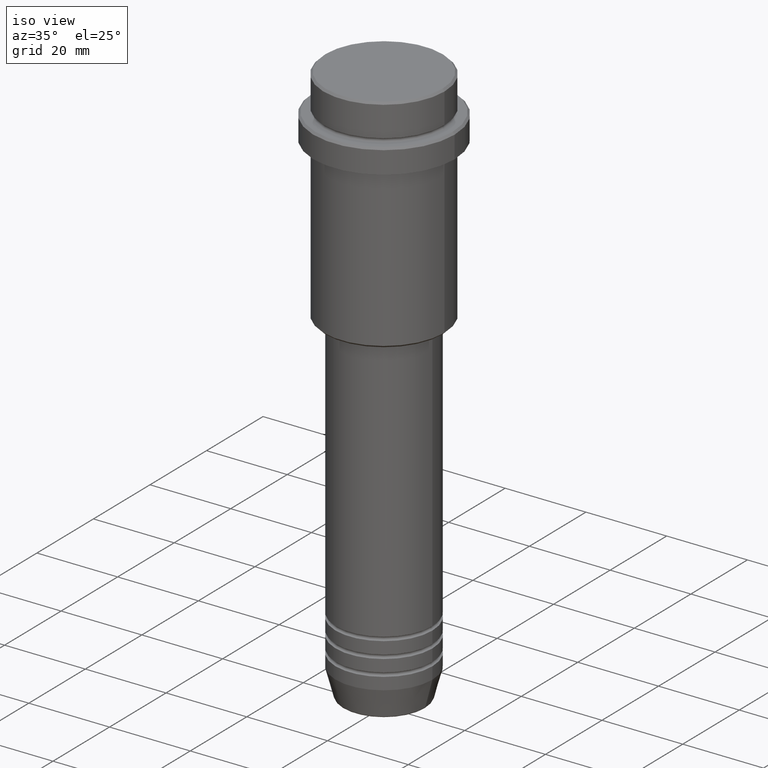
[diagram: clean part render]
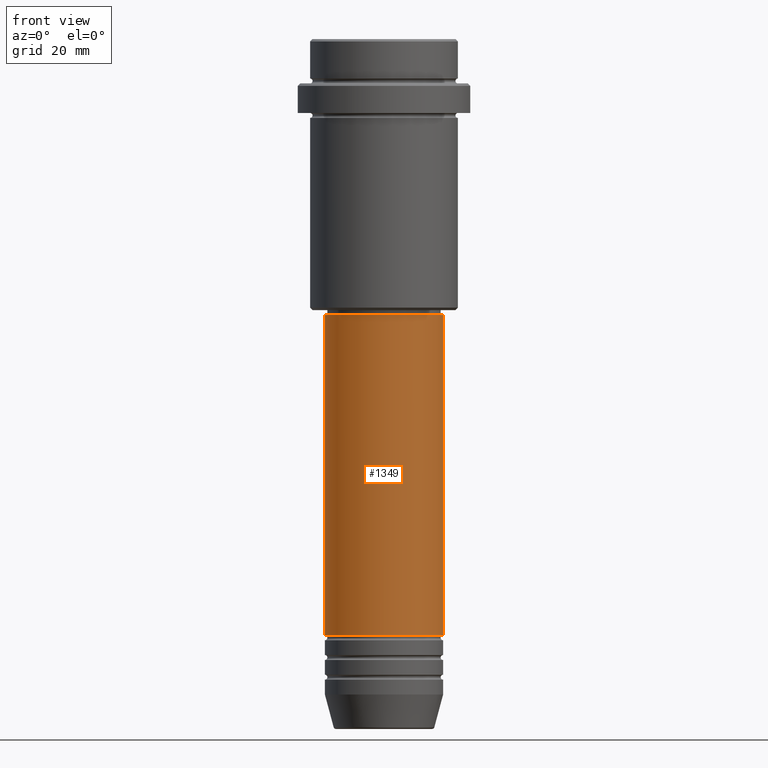
[diagram: tour spotlight — one face highlighted and labeled with its STEP entity id]
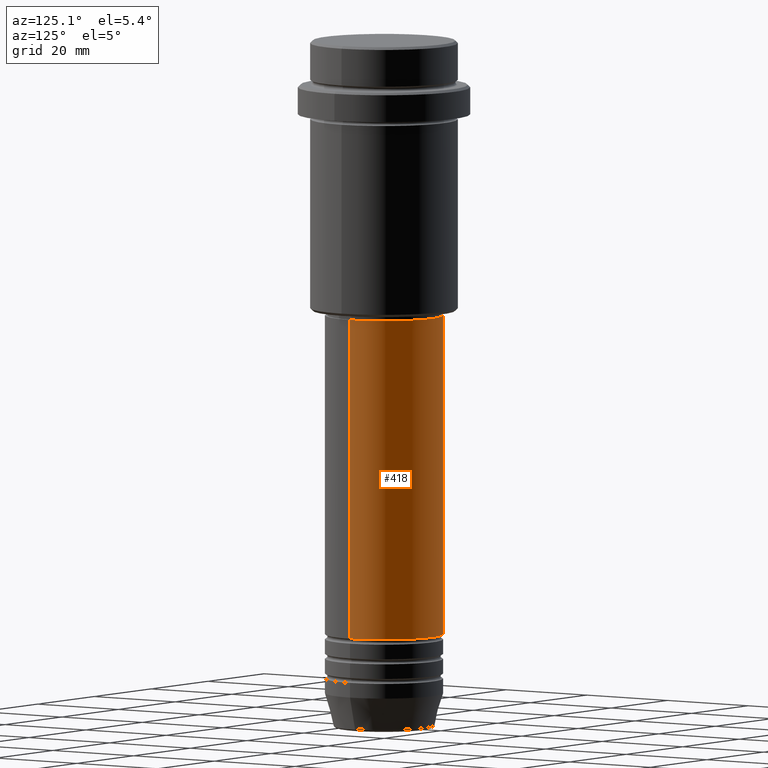
[diagram: tour spotlight — one face highlighted and labeled with its STEP entity id]
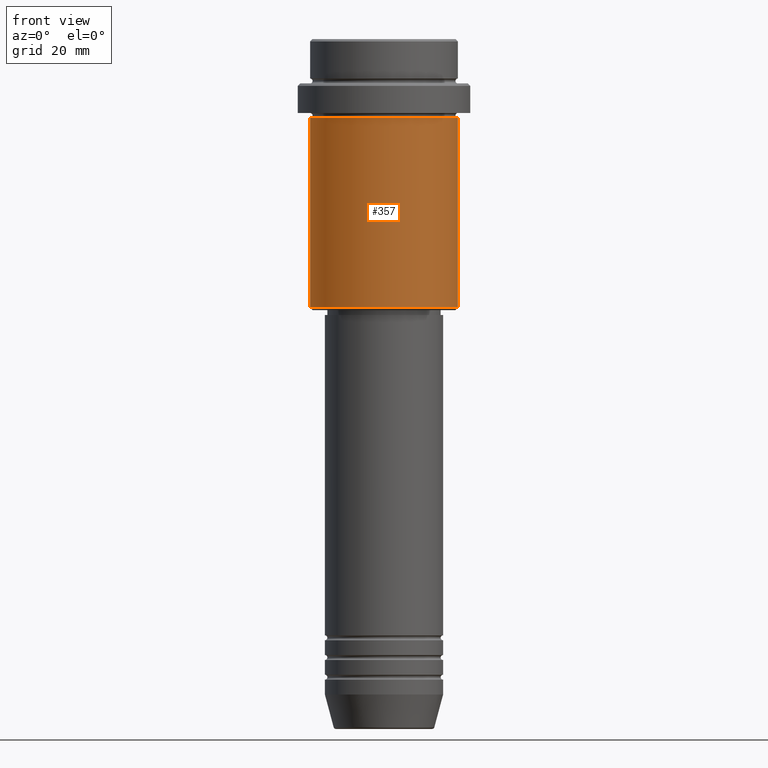
[diagram: tour spotlight — one face highlighted and labeled with its STEP entity id]
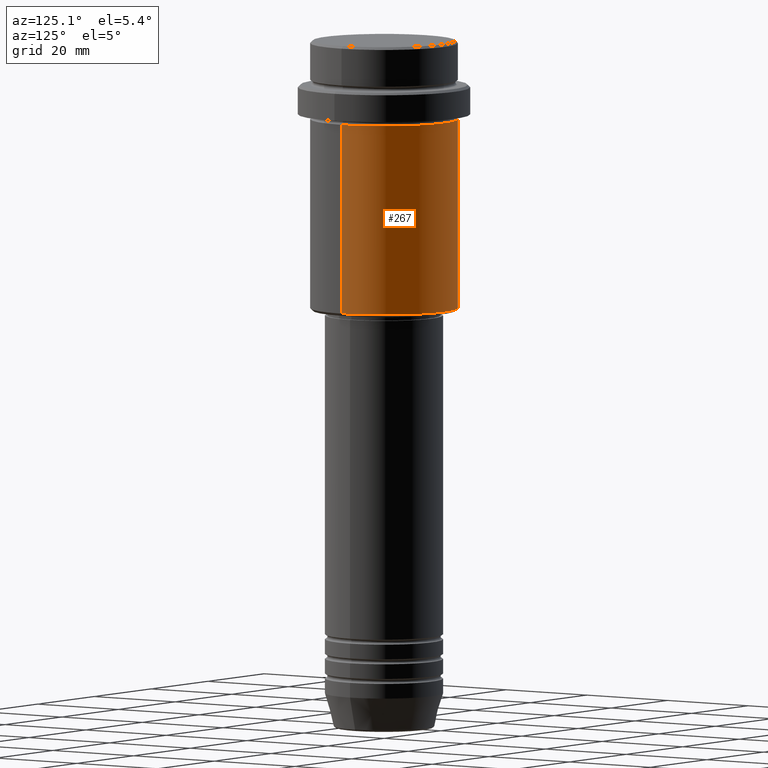
[diagram: tour spotlight — one face highlighted and labeled with its STEP entity id]
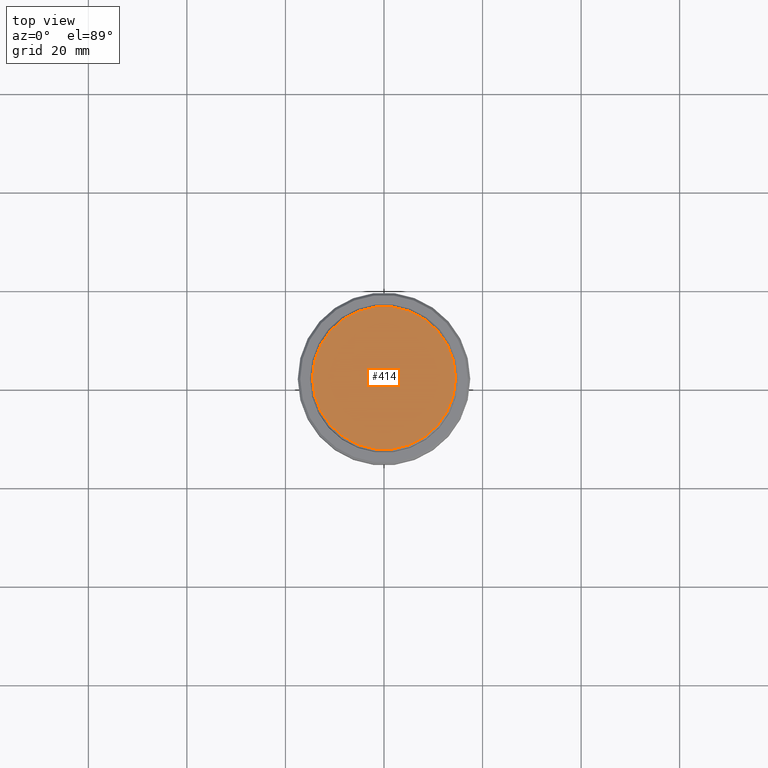
[diagram: tour spotlight — one face highlighted and labeled with its STEP entity id]
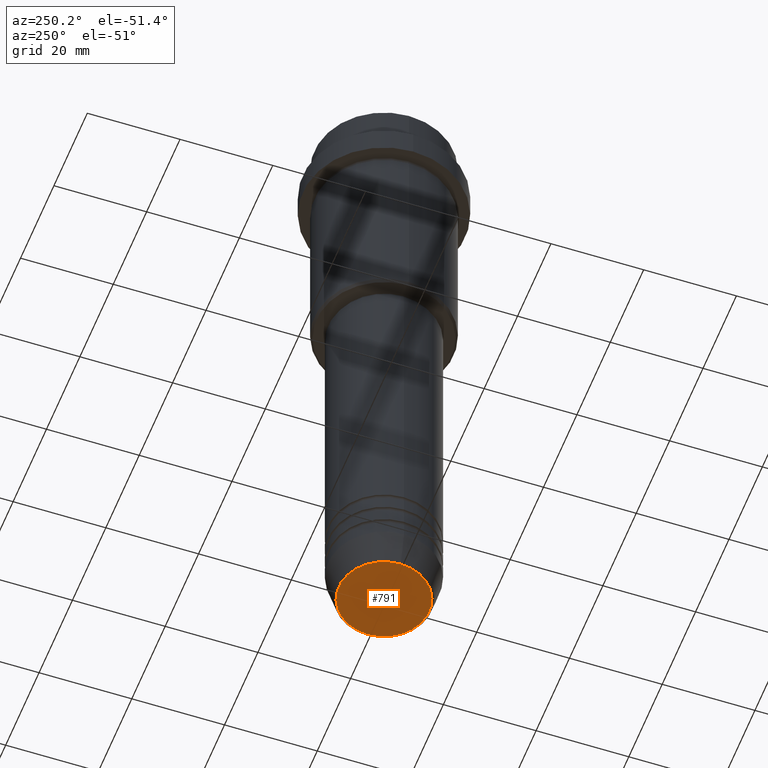
[diagram: tour spotlight — one face highlighted and labeled with its STEP entity id]
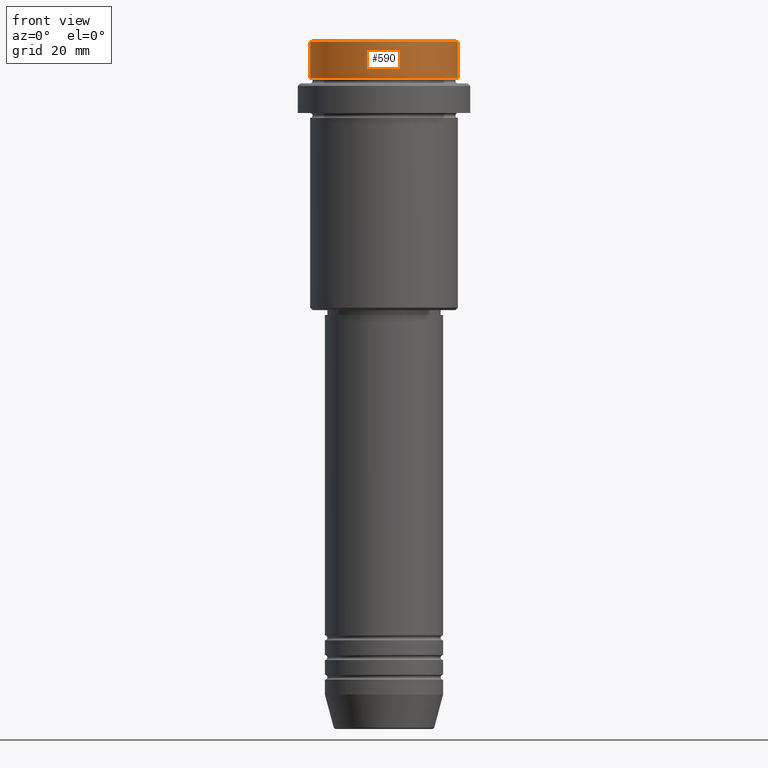
[diagram: tour spotlight — one face highlighted and labeled with its STEP entity id]
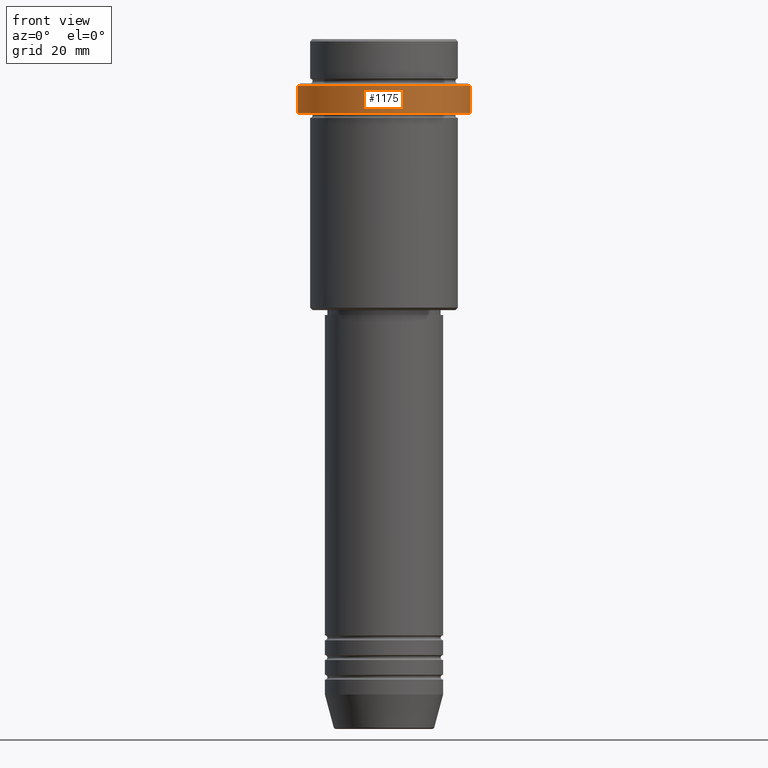
[diagram: tour spotlight — one face highlighted and labeled with its STEP entity id]
A machine part: a face-by-face anatomy tour. The part has 52 B-rep faces; the first image is the clean iso view, then the 8 largest visible faces are spotlighted one at a time (largest first), each with its STEP entity span.

Face 1 — front view, entity #1349. In plain terms, the highlighted cylindrical surface (partial cylindrical patch) has radius 12 mm, axis along (-0, -0, 1).
Definition (entity closure, byte-faithful):
#28 = LINE ( 'NONE', #260, #1386 ) ;
#53 = VERTEX_POINT ( 'NONE', #1324 ) ;
#86 = CIRCLE ( 'NONE', #895, 11.99999999999999822 ) ;
#149 = CYLINDRICAL_SURFACE ( 'NONE', #984, 12.00000000000000000 ) ;
#260 = CARTESIAN_POINT ( 'NONE',  ( -12.00000000000000000, 1.469576158976823947E-15, 0.000000000000000000 ) ) ;
#265 = ORIENTED_EDGE ( 'NONE', *, *, #966, .F. ) ;
#286 = DIRECTION ( 'NONE',  ( -0.000000000000000000, -0.000000000000000000, 1.000000000000000000 ) ) ;
#291 = EDGE_LOOP ( 'NONE', ( #265, #730, #1398, #1172 ) ) ;
#306 = CIRCLE ( 'NONE', #780, 12.00000000000000000 ) ;
#368 = DIRECTION ( 'NONE',  ( 1.000000000000000000, 0.000000000000000000, 0.000000000000000000 ) ) ;
#387 = DIRECTION ( 'NONE',  ( 1.000000000000000000, 0.000000000000000000, 0.000000000000000000 ) ) ;
#429 = VERTEX_POINT ( 'NONE', #1135 ) ;
#529 = CARTESIAN_POINT ( 'NONE',  ( 0.000000000000000000, 0.000000000000000000, -120.9999999999999005 ) ) ;
#637 = DIRECTION ( 'NONE',  ( -0.000000000000000000, -0.000000000000000000, 1.000000000000000000 ) ) ;
#647 = VECTOR ( 'NONE', #637, 1000.000000000000000 ) ;
#691 = DIRECTION ( 'NONE',  ( -0.000000000000000000, -0.000000000000000000, 1.000000000000000000 ) ) ;
#724 = CARTESIAN_POINT ( 'NONE',  ( 0.000000000000000000, 0.000000000000000000, 0.000000000000000000 ) ) ;
#730 = ORIENTED_EDGE ( 'NONE', *, *, #810, .T. ) ;
#750 = EDGE_CURVE ( 'NONE', #429, #915, #862, .T. ) ;
#769 = VERTEX_POINT ( 'NONE', #1160 ) ;
#780 = AXIS2_PLACEMENT_3D ( 'NONE', #529, #853, #845 ) ;
#809 = FACE_OUTER_BOUND ( 'NONE', #291, .T. ) ;
#810 = EDGE_CURVE ( 'NONE', #53, #429, #306, .T. ) ;
#827 = CARTESIAN_POINT ( 'NONE',  ( 0.000000000000000000, 0.000000000000000000, -56.00000000000000711 ) ) ;
#845 = DIRECTION ( 'NONE',  ( 1.000000000000000000, 0.000000000000000000, 0.000000000000000000 ) ) ;
#853 = DIRECTION ( 'NONE',  ( -0.000000000000000000, -0.000000000000000000, 1.000000000000000000 ) ) ;
#862 = LINE ( 'NONE', #1372, #647 ) ;
#895 = AXIS2_PLACEMENT_3D ( 'NONE', #827, #286, #387 ) ;
#915 = VERTEX_POINT ( 'NONE', #1417 ) ;
#930 = DIRECTION ( 'NONE',  ( -0.000000000000000000, -0.000000000000000000, 1.000000000000000000 ) ) ;
#966 = EDGE_CURVE ( 'NONE', #53, #769, #28, .T. ) ;
#984 = AXIS2_PLACEMENT_3D ( 'NONE', #724, #930, #368 ) ;
#1135 = CARTESIAN_POINT ( 'NONE',  ( 12.00000000000000000, 0.000000000000000000, -120.9999999999999005 ) ) ;
#1160 = CARTESIAN_POINT ( 'NONE',  ( -11.99999999999999822, 1.469576158976823750E-15, -56.00000000000000711 ) ) ;
#1172 = ORIENTED_EDGE ( 'NONE', *, *, #1304, .F. ) ;
#1304 = EDGE_CURVE ( 'NONE', #769, #915, #86, .T. ) ;
#1324 = CARTESIAN_POINT ( 'NONE',  ( -12.00000000000000000, 1.469576158976823947E-15, -120.9999999999999005 ) ) ;
#1349 = ADVANCED_FACE ( 'NONE', ( #809 ), #149, .T. ) ;
#1372 = CARTESIAN_POINT ( 'NONE',  ( 12.00000000000000000, 0.000000000000000000, 0.000000000000000000 ) ) ;
#1386 = VECTOR ( 'NONE', #691, 1000.000000000000000 ) ;
#1398 = ORIENTED_EDGE ( 'NONE', *, *, #750, .T. ) ;
#1417 = CARTESIAN_POINT ( 'NONE',  ( 11.99999999999999822, 0.000000000000000000, -56.00000000000000711 ) ) ;

Face 2 — auxiliary view, entity #418. In plain terms, the highlighted cylindrical surface (partial cylindrical patch) has radius 12 mm, axis along (-0, -0, 1).
Definition (entity closure, byte-faithful):
#18 = AXIS2_PLACEMENT_3D ( 'NONE', #1251, #266, #281 ) ;
#28 = LINE ( 'NONE', #260, #1386 ) ;
#53 = VERTEX_POINT ( 'NONE', #1324 ) ;
#105 = EDGE_CURVE ( 'NONE', #429, #53, #1092, .T. ) ;
#131 = CIRCLE ( 'NONE', #640, 11.99999999999999822 ) ;
#158 = DIRECTION ( 'NONE',  ( -0.000000000000000000, -0.000000000000000000, 1.000000000000000000 ) ) ;
#202 = DIRECTION ( 'NONE',  ( 1.000000000000000000, 0.000000000000000000, 0.000000000000000000 ) ) ;
#260 = CARTESIAN_POINT ( 'NONE',  ( -12.00000000000000000, 1.469576158976823947E-15, 0.000000000000000000 ) ) ;
#266 = DIRECTION ( 'NONE',  ( -0.000000000000000000, -0.000000000000000000, 1.000000000000000000 ) ) ;
#281 = DIRECTION ( 'NONE',  ( 1.000000000000000000, 0.000000000000000000, 0.000000000000000000 ) ) ;
#415 = CARTESIAN_POINT ( 'NONE',  ( 0.000000000000000000, 0.000000000000000000, -120.9999999999999005 ) ) ;
#418 = ADVANCED_FACE ( 'NONE', ( #813 ), #819, .T. ) ;
#429 = VERTEX_POINT ( 'NONE', #1135 ) ;
#576 = EDGE_LOOP ( 'NONE', ( #751, #747, #714, #1157 ) ) ;
#617 = CARTESIAN_POINT ( 'NONE',  ( 0.000000000000000000, 0.000000000000000000, -56.00000000000000711 ) ) ;
#637 = DIRECTION ( 'NONE',  ( -0.000000000000000000, -0.000000000000000000, 1.000000000000000000 ) ) ;
#640 = AXIS2_PLACEMENT_3D ( 'NONE', #617, #158, #925 ) ;
#647 = VECTOR ( 'NONE', #637, 1000.000000000000000 ) ;
#663 = AXIS2_PLACEMENT_3D ( 'NONE', #415, #1176, #202 ) ;
#691 = DIRECTION ( 'NONE',  ( -0.000000000000000000, -0.000000000000000000, 1.000000000000000000 ) ) ;
#714 = ORIENTED_EDGE ( 'NONE', *, *, #1066, .F. ) ;
#747 = ORIENTED_EDGE ( 'NONE', *, *, #966, .T. ) ;
#750 = EDGE_CURVE ( 'NONE', #429, #915, #862, .T. ) ;
#751 = ORIENTED_EDGE ( 'NONE', *, *, #105, .T. ) ;
#769 = VERTEX_POINT ( 'NONE', #1160 ) ;
#813 = FACE_OUTER_BOUND ( 'NONE', #576, .T. ) ;
#819 = CYLINDRICAL_SURFACE ( 'NONE', #18, 12.00000000000000000 ) ;
#862 = LINE ( 'NONE', #1372, #647 ) ;
#915 = VERTEX_POINT ( 'NONE', #1417 ) ;
#925 = DIRECTION ( 'NONE',  ( 1.000000000000000000, 0.000000000000000000, 0.000000000000000000 ) ) ;
#966 = EDGE_CURVE ( 'NONE', #53, #769, #28, .T. ) ;
#1066 = EDGE_CURVE ( 'NONE', #915, #769, #131, .T. ) ;
#1092 = CIRCLE ( 'NONE', #663, 12.00000000000000000 ) ;
#1135 = CARTESIAN_POINT ( 'NONE',  ( 12.00000000000000000, 0.000000000000000000, -120.9999999999999005 ) ) ;
#1157 = ORIENTED_EDGE ( 'NONE', *, *, #750, .F. ) ;
#1160 = CARTESIAN_POINT ( 'NONE',  ( -11.99999999999999822, 1.469576158976823750E-15, -56.00000000000000711 ) ) ;
#1176 = DIRECTION ( 'NONE',  ( -0.000000000000000000, -0.000000000000000000, 1.000000000000000000 ) ) ;
#1251 = CARTESIAN_POINT ( 'NONE',  ( 0.000000000000000000, 0.000000000000000000, 0.000000000000000000 ) ) ;
#1324 = CARTESIAN_POINT ( 'NONE',  ( -12.00000000000000000, 1.469576158976823947E-15, -120.9999999999999005 ) ) ;
#1372 = CARTESIAN_POINT ( 'NONE',  ( 12.00000000000000000, 0.000000000000000000, 0.000000000000000000 ) ) ;
#1386 = VECTOR ( 'NONE', #691, 1000.000000000000000 ) ;
#1417 = CARTESIAN_POINT ( 'NONE',  ( 11.99999999999999822, 0.000000000000000000, -56.00000000000000711 ) ) ;

Face 3 — front view, entity #357. In plain terms, the highlighted cylindrical surface (partial cylindrical patch) has radius 15 mm, axis along (-0, -0, 1).
Definition (entity closure, byte-faithful):
#29 = DIRECTION ( 'NONE',  ( -0.000000000000000000, -0.000000000000000000, 1.000000000000000000 ) ) ;
#63 = VECTOR ( 'NONE', #790, 1000.000000000000000 ) ;
#111 = AXIS2_PLACEMENT_3D ( 'NONE', #772, #437, #872 ) ;
#130 = EDGE_CURVE ( 'NONE', #1188, #285, #1186, .T. ) ;
#140 = CARTESIAN_POINT ( 'NONE',  ( -15.00000000000000355, 1.836970198721029983E-15, -16.00000000000000000 ) ) ;
#160 = AXIS2_PLACEMENT_3D ( 'NONE', #1059, #1181, #313 ) ;
#285 = VERTEX_POINT ( 'NONE', #527 ) ;
#311 = CARTESIAN_POINT ( 'NONE',  ( 15.00000000000000000, 0.000000000000000000, -54.50000000000002132 ) ) ;
#313 = DIRECTION ( 'NONE',  ( 1.000000000000000000, 0.000000000000000000, 0.000000000000000000 ) ) ;
#342 = AXIS2_PLACEMENT_3D ( 'NONE', #931, #1021, #938 ) ;
#354 = ORIENTED_EDGE ( 'NONE', *, *, #1030, .T. ) ;
#357 = ADVANCED_FACE ( 'NONE', ( #646 ), #748, .T. ) ;
#383 = ORIENTED_EDGE ( 'NONE', *, *, #130, .F. ) ;
#419 = EDGE_LOOP ( 'NONE', ( #1218, #354, #954, #383 ) ) ;
#437 = DIRECTION ( 'NONE',  ( -0.000000000000000000, -0.000000000000000000, 1.000000000000000000 ) ) ;
#465 = LINE ( 'NONE', #785, #63 ) ;
#527 = CARTESIAN_POINT ( 'NONE',  ( 15.00000000000000178, 0.000000000000000000, -16.00000000000000000 ) ) ;
#611 = VERTEX_POINT ( 'NONE', #311 ) ;
#646 = FACE_OUTER_BOUND ( 'NONE', #419, .T. ) ;
#709 = LINE ( 'NONE', #1142, #1325 ) ;
#748 = CYLINDRICAL_SURFACE ( 'NONE', #160, 15.00000000000000000 ) ;
#772 = CARTESIAN_POINT ( 'NONE',  ( 0.000000000000000000, 0.000000000000000000, -16.00000000000000000 ) ) ;
#785 = CARTESIAN_POINT ( 'NONE',  ( 15.00000000000000000, 0.000000000000000000, 0.000000000000000000 ) ) ;
#790 = DIRECTION ( 'NONE',  ( -0.000000000000000000, -0.000000000000000000, 1.000000000000000000 ) ) ;
#872 = DIRECTION ( 'NONE',  ( 1.000000000000000000, 0.000000000000000000, 0.000000000000000000 ) ) ;
#894 = CIRCLE ( 'NONE', #342, 15.00000000000000000 ) ;
#931 = CARTESIAN_POINT ( 'NONE',  ( 0.000000000000000000, 0.000000000000000000, -54.50000000000002132 ) ) ;
#938 = DIRECTION ( 'NONE',  ( -1.000000000000000000, 0.000000000000000000, 0.000000000000000000 ) ) ;
#954 = ORIENTED_EDGE ( 'NONE', *, *, #1230, .T. ) ;
#1021 = DIRECTION ( 'NONE',  ( -0.000000000000000000, -0.000000000000000000, 1.000000000000000000 ) ) ;
#1030 = EDGE_CURVE ( 'NONE', #1121, #611, #894, .T. ) ;
#1059 = CARTESIAN_POINT ( 'NONE',  ( 0.000000000000000000, 0.000000000000000000, 0.000000000000000000 ) ) ;
#1121 = VERTEX_POINT ( 'NONE', #1192 ) ;
#1142 = CARTESIAN_POINT ( 'NONE',  ( -15.00000000000000000, 1.836970198721029589E-15, 0.000000000000000000 ) ) ;
#1181 = DIRECTION ( 'NONE',  ( -0.000000000000000000, -0.000000000000000000, 1.000000000000000000 ) ) ;
#1186 = CIRCLE ( 'NONE', #111, 15.00000000000000178 ) ;
#1188 = VERTEX_POINT ( 'NONE', #140 ) ;
#1192 = CARTESIAN_POINT ( 'NONE',  ( -15.00000000000000000, 1.836970198721029589E-15, -54.50000000000002132 ) ) ;
#1218 = ORIENTED_EDGE ( 'NONE', *, *, #1405, .F. ) ;
#1230 = EDGE_CURVE ( 'NONE', #611, #285, #465, .T. ) ;
#1325 = VECTOR ( 'NONE', #29, 1000.000000000000000 ) ;
#1405 = EDGE_CURVE ( 'NONE', #1121, #1188, #709, .T. ) ;

Face 4 — auxiliary view, entity #267. In plain terms, the highlighted cylindrical surface (partial cylindrical patch) has radius 15 mm, axis along (-0, -0, 1).
Definition (entity closure, byte-faithful):
#29 = DIRECTION ( 'NONE',  ( -0.000000000000000000, -0.000000000000000000, 1.000000000000000000 ) ) ;
#63 = VECTOR ( 'NONE', #790, 1000.000000000000000 ) ;
#75 = ORIENTED_EDGE ( 'NONE', *, *, #1405, .T. ) ;
#84 = CIRCLE ( 'NONE', #346, 15.00000000000000000 ) ;
#140 = CARTESIAN_POINT ( 'NONE',  ( -15.00000000000000355, 1.836970198721029983E-15, -16.00000000000000000 ) ) ;
#174 = DIRECTION ( 'NONE',  ( 1.000000000000000000, 0.000000000000000000, 0.000000000000000000 ) ) ;
#212 = CIRCLE ( 'NONE', #1203, 15.00000000000000178 ) ;
#239 = FACE_OUTER_BOUND ( 'NONE', #1087, .T. ) ;
#267 = ADVANCED_FACE ( 'NONE', ( #239 ), #284, .T. ) ;
#284 = CYLINDRICAL_SURFACE ( 'NONE', #1303, 15.00000000000000000 ) ;
#285 = VERTEX_POINT ( 'NONE', #527 ) ;
#311 = CARTESIAN_POINT ( 'NONE',  ( 15.00000000000000000, 0.000000000000000000, -54.50000000000002132 ) ) ;
#346 = AXIS2_PLACEMENT_3D ( 'NONE', #1274, #633, #970 ) ;
#465 = LINE ( 'NONE', #785, #63 ) ;
#527 = CARTESIAN_POINT ( 'NONE',  ( 15.00000000000000178, 0.000000000000000000, -16.00000000000000000 ) ) ;
#611 = VERTEX_POINT ( 'NONE', #311 ) ;
#633 = DIRECTION ( 'NONE',  ( -0.000000000000000000, -0.000000000000000000, 1.000000000000000000 ) ) ;
#660 = CARTESIAN_POINT ( 'NONE',  ( 0.000000000000000000, 0.000000000000000000, -16.00000000000000000 ) ) ;
#673 = DIRECTION ( 'NONE',  ( -0.000000000000000000, -0.000000000000000000, 1.000000000000000000 ) ) ;
#674 = DIRECTION ( 'NONE',  ( -0.000000000000000000, -0.000000000000000000, 1.000000000000000000 ) ) ;
#709 = LINE ( 'NONE', #1142, #1325 ) ;
#785 = CARTESIAN_POINT ( 'NONE',  ( 15.00000000000000000, 0.000000000000000000, 0.000000000000000000 ) ) ;
#790 = DIRECTION ( 'NONE',  ( -0.000000000000000000, -0.000000000000000000, 1.000000000000000000 ) ) ;
#814 = EDGE_CURVE ( 'NONE', #611, #1121, #84, .T. ) ;
#970 = DIRECTION ( 'NONE',  ( -1.000000000000000000, 0.000000000000000000, 0.000000000000000000 ) ) ;
#1041 = ORIENTED_EDGE ( 'NONE', *, *, #814, .T. ) ;
#1087 = EDGE_LOOP ( 'NONE', ( #1041, #75, #1383, #1116 ) ) ;
#1116 = ORIENTED_EDGE ( 'NONE', *, *, #1230, .F. ) ;
#1121 = VERTEX_POINT ( 'NONE', #1192 ) ;
#1142 = CARTESIAN_POINT ( 'NONE',  ( -15.00000000000000000, 1.836970198721029589E-15, 0.000000000000000000 ) ) ;
#1148 = CARTESIAN_POINT ( 'NONE',  ( 0.000000000000000000, 0.000000000000000000, 0.000000000000000000 ) ) ;
#1188 = VERTEX_POINT ( 'NONE', #140 ) ;
#1192 = CARTESIAN_POINT ( 'NONE',  ( -15.00000000000000000, 1.836970198721029589E-15, -54.50000000000002132 ) ) ;
#1193 = EDGE_CURVE ( 'NONE', #285, #1188, #212, .T. ) ;
#1202 = DIRECTION ( 'NONE',  ( 1.000000000000000000, 0.000000000000000000, 0.000000000000000000 ) ) ;
#1203 = AXIS2_PLACEMENT_3D ( 'NONE', #660, #674, #1202 ) ;
#1230 = EDGE_CURVE ( 'NONE', #611, #285, #465, .T. ) ;
#1274 = CARTESIAN_POINT ( 'NONE',  ( 0.000000000000000000, 0.000000000000000000, -54.50000000000002132 ) ) ;
#1303 = AXIS2_PLACEMENT_3D ( 'NONE', #1148, #673, #174 ) ;
#1325 = VECTOR ( 'NONE', #29, 1000.000000000000000 ) ;
#1383 = ORIENTED_EDGE ( 'NONE', *, *, #1193, .F. ) ;
#1405 = EDGE_CURVE ( 'NONE', #1121, #1188, #709, .T. ) ;

Face 5 — top view, entity #414. In plain terms, the highlighted planar face has unit normal (0, -0, 1).
Definition (entity closure, byte-faithful):
#44 = CIRCLE ( 'NONE', #1345, 14.49999999999999645 ) ;
#182 = VERTEX_POINT ( 'NONE', #506 ) ;
#279 = CIRCLE ( 'NONE', #1094, 14.49999999999999645 ) ;
#296 = DIRECTION ( 'NONE',  ( 1.000000000000000000, 0.000000000000000000, 0.000000000000000000 ) ) ;
#393 = DIRECTION ( 'NONE',  ( -0.000000000000000000, -0.000000000000000000, 1.000000000000000000 ) ) ;
#414 = ADVANCED_FACE ( 'NONE', ( #713 ), #927, .T. ) ;
#458 = EDGE_CURVE ( 'NONE', #491, #182, #279, .T. ) ;
#491 = VERTEX_POINT ( 'NONE', #1347 ) ;
#506 = CARTESIAN_POINT ( 'NONE',  ( -14.49999999999999645, 0.000000000000000000, 0.000000000000000000 ) ) ;
#515 = ORIENTED_EDGE ( 'NONE', *, *, #580, .T. ) ;
#580 = EDGE_CURVE ( 'NONE', #182, #491, #44, .T. ) ;
#583 = CARTESIAN_POINT ( 'NONE',  ( 0.000000000000000000, 0.000000000000000000, 0.000000000000000000 ) ) ;
#713 = FACE_OUTER_BOUND ( 'NONE', #973, .T. ) ;
#738 = CARTESIAN_POINT ( 'NONE',  ( 0.000000000000000000, 0.000000000000000000, 0.000000000000000000 ) ) ;
#787 = CARTESIAN_POINT ( 'NONE',  ( 0.000000000000000000, 0.000000000000000000, 0.000000000000000000 ) ) ;
#807 = ORIENTED_EDGE ( 'NONE', *, *, #458, .T. ) ;
#828 = AXIS2_PLACEMENT_3D ( 'NONE', #787, #1024, #1032 ) ;
#916 = DIRECTION ( 'NONE',  ( -0.000000000000000000, -0.000000000000000000, 1.000000000000000000 ) ) ;
#927 = PLANE ( 'NONE',  #828 ) ;
#973 = EDGE_LOOP ( 'NONE', ( #515, #807 ) ) ;
#1017 = DIRECTION ( 'NONE',  ( 1.000000000000000000, 0.000000000000000000, 0.000000000000000000 ) ) ;
#1024 = DIRECTION ( 'NONE',  ( 0.000000000000000000, -0.000000000000000000, 1.000000000000000000 ) ) ;
#1032 = DIRECTION ( 'NONE',  ( 1.000000000000000000, 0.000000000000000000, 0.000000000000000000 ) ) ;
#1094 = AXIS2_PLACEMENT_3D ( 'NONE', #583, #916, #1017 ) ;
#1345 = AXIS2_PLACEMENT_3D ( 'NONE', #738, #393, #296 ) ;
#1347 = CARTESIAN_POINT ( 'NONE',  ( 14.49999999999999645, 1.806354028742345802E-15, 0.000000000000000000 ) ) ;

Face 6 — auxiliary view, entity #791. In plain terms, the highlighted planar face has unit normal (0, -0, 1).
Definition (entity closure, byte-faithful):
#82 = FACE_OUTER_BOUND ( 'NONE', #1178, .T. ) ;
#216 = CIRCLE ( 'NONE', #324, 9.740692158992658278 ) ;
#276 = CIRCLE ( 'NONE', #731, 9.740692158992658278 ) ;
#324 = AXIS2_PLACEMENT_3D ( 'NONE', #355, #476, #575 ) ;
#355 = CARTESIAN_POINT ( 'NONE',  ( 0.000000000000000000, 0.000000000000000000, -140.0000000000000000 ) ) ;
#407 = PLANE ( 'NONE',  #1134 ) ;
#411 = EDGE_CURVE ( 'NONE', #1107, #1271, #216, .T. ) ;
#476 = DIRECTION ( 'NONE',  ( 0.000000000000000000, 0.000000000000000000, -1.000000000000000000 ) ) ;
#510 = CARTESIAN_POINT ( 'NONE',  ( 0.000000000000000000, 0.000000000000000000, -140.0000000000000000 ) ) ;
#575 = DIRECTION ( 'NONE',  ( 1.000000000000000000, 0.000000000000000000, 0.000000000000000000 ) ) ;
#608 = DIRECTION ( 'NONE',  ( 1.000000000000000000, 0.000000000000000000, 0.000000000000000000 ) ) ;
#609 = ORIENTED_EDGE ( 'NONE', *, *, #1102, .T. ) ;
#719 = DIRECTION ( 'NONE',  ( 0.000000000000000000, -0.000000000000000000, 1.000000000000000000 ) ) ;
#731 = AXIS2_PLACEMENT_3D ( 'NONE', #1308, #765, #749 ) ;
#749 = DIRECTION ( 'NONE',  ( 1.000000000000000000, 0.000000000000000000, 0.000000000000000000 ) ) ;
#755 = CARTESIAN_POINT ( 'NONE',  ( 9.740692158992658278, 0.000000000000000000, -140.0000000000000000 ) ) ;
#765 = DIRECTION ( 'NONE',  ( 0.000000000000000000, 0.000000000000000000, -1.000000000000000000 ) ) ;
#791 = ADVANCED_FACE ( 'NONE', ( #82 ), #407, .F. ) ;
#1102 = EDGE_CURVE ( 'NONE', #1271, #1107, #276, .T. ) ;
#1107 = VERTEX_POINT ( 'NONE', #755 ) ;
#1134 = AXIS2_PLACEMENT_3D ( 'NONE', #510, #719, #608 ) ;
#1164 = ORIENTED_EDGE ( 'NONE', *, *, #411, .T. ) ;
#1178 = EDGE_LOOP ( 'NONE', ( #1164, #609 ) ) ;
#1232 = CARTESIAN_POINT ( 'NONE',  ( -9.740692158992658278, 1.222463696683474999E-15, -140.0000000000000000 ) ) ;
#1271 = VERTEX_POINT ( 'NONE', #1232 ) ;
#1308 = CARTESIAN_POINT ( 'NONE',  ( 0.000000000000000000, 0.000000000000000000, -140.0000000000000000 ) ) ;

Face 7 — front view, entity #590. In plain terms, the highlighted cylindrical surface (partial cylindrical patch) has radius 15 mm, axis along (-0, -0, 1).
Definition (entity closure, byte-faithful):
#33 = EDGE_CURVE ( 'NONE', #641, #860, #1241, .T. ) ;
#39 = DIRECTION ( 'NONE',  ( 1.000000000000000000, 0.000000000000000000, 0.000000000000000000 ) ) ;
#50 = EDGE_CURVE ( 'NONE', #221, #641, #823, .T. ) ;
#135 = VECTOR ( 'NONE', #421, 1000.000000000000000 ) ;
#175 = ORIENTED_EDGE ( 'NONE', *, *, #678, .T. ) ;
#179 = CARTESIAN_POINT ( 'NONE',  ( 0.000000000000000000, 0.000000000000000000, 0.000000000000000000 ) ) ;
#188 = DIRECTION ( 'NONE',  ( -0.000000000000000000, -0.000000000000000000, 1.000000000000000000 ) ) ;
#221 = VERTEX_POINT ( 'NONE', #1321 ) ;
#289 = CYLINDRICAL_SURFACE ( 'NONE', #1284, 15.00000000000000000 ) ;
#365 = AXIS2_PLACEMENT_3D ( 'NONE', #468, #1132, #39 ) ;
#375 = CARTESIAN_POINT ( 'NONE',  ( 15.00000000000000000, 0.000000000000000000, 0.000000000000000000 ) ) ;
#421 = DIRECTION ( 'NONE',  ( -0.000000000000000000, -0.000000000000000000, 1.000000000000000000 ) ) ;
#442 = AXIS2_PLACEMENT_3D ( 'NONE', #560, #876, #993 ) ;
#468 = CARTESIAN_POINT ( 'NONE',  ( 0.000000000000000000, 0.000000000000000000, -7.999999999999998224 ) ) ;
#521 = ORIENTED_EDGE ( 'NONE', *, *, #607, .F. ) ;
#533 = CARTESIAN_POINT ( 'NONE',  ( -15.00000000000000000, 1.836970198721029589E-15, 0.000000000000000000 ) ) ;
#536 = ORIENTED_EDGE ( 'NONE', *, *, #50, .T. ) ;
#560 = CARTESIAN_POINT ( 'NONE',  ( 0.000000000000000000, 0.000000000000000000, -0.4999999999999970024 ) ) ;
#590 = ADVANCED_FACE ( 'NONE', ( #1278 ), #289, .T. ) ;
#607 = EDGE_CURVE ( 'NONE', #221, #1265, #1046, .T. ) ;
#641 = VERTEX_POINT ( 'NONE', #1314 ) ;
#678 = EDGE_CURVE ( 'NONE', #860, #1265, #1326, .T. ) ;
#823 = CIRCLE ( 'NONE', #365, 15.00000000000000000 ) ;
#826 = EDGE_LOOP ( 'NONE', ( #521, #536, #1194, #175 ) ) ;
#860 = VERTEX_POINT ( 'NONE', #1410 ) ;
#876 = DIRECTION ( 'NONE',  ( 0.000000000000000000, 0.000000000000000000, -1.000000000000000000 ) ) ;
#983 = VECTOR ( 'NONE', #1112, 1000.000000000000000 ) ;
#993 = DIRECTION ( 'NONE',  ( 1.000000000000000000, 0.000000000000000000, 0.000000000000000000 ) ) ;
#1046 = LINE ( 'NONE', #533, #135 ) ;
#1069 = DIRECTION ( 'NONE',  ( 1.000000000000000000, 0.000000000000000000, 0.000000000000000000 ) ) ;
#1112 = DIRECTION ( 'NONE',  ( -0.000000000000000000, -0.000000000000000000, 1.000000000000000000 ) ) ;
#1131 = CARTESIAN_POINT ( 'NONE',  ( -15.00000000000000000, 1.836970198721029589E-15, -0.4999999999999970024 ) ) ;
#1132 = DIRECTION ( 'NONE',  ( -0.000000000000000000, -0.000000000000000000, 1.000000000000000000 ) ) ;
#1194 = ORIENTED_EDGE ( 'NONE', *, *, #33, .T. ) ;
#1241 = LINE ( 'NONE', #375, #983 ) ;
#1265 = VERTEX_POINT ( 'NONE', #1131 ) ;
#1278 = FACE_OUTER_BOUND ( 'NONE', #826, .T. ) ;
#1284 = AXIS2_PLACEMENT_3D ( 'NONE', #179, #188, #1069 ) ;
#1314 = CARTESIAN_POINT ( 'NONE',  ( 15.00000000000000000, 0.000000000000000000, -7.999999999999998224 ) ) ;
#1321 = CARTESIAN_POINT ( 'NONE',  ( -15.00000000000000000, 1.836970198721029589E-15, -7.999999999999998224 ) ) ;
#1326 = CIRCLE ( 'NONE', #442, 15.00000000000000000 ) ;
#1410 = CARTESIAN_POINT ( 'NONE',  ( 15.00000000000000000, 0.000000000000000000, -0.4999999999999970024 ) ) ;

Face 8 — front view, entity #1175. In plain terms, the highlighted cylindrical surface (partial cylindrical patch) has radius 17.5 mm, axis along (-0, -0, 1).
Definition (entity closure, byte-faithful):
#81 = EDGE_CURVE ( 'NONE', #635, #290, #360, .T. ) ;
#115 = CIRCLE ( 'NONE', #666, 17.50000000000000000 ) ;
#127 = ORIENTED_EDGE ( 'NONE', *, *, #585, .F. ) ;
#177 = DIRECTION ( 'NONE',  ( 1.000000000000000000, 0.000000000000000000, 0.000000000000000000 ) ) ;
#193 = CARTESIAN_POINT ( 'NONE',  ( 0.000000000000000000, 0.000000000000000000, -9.500000000000000000 ) ) ;
#196 = DIRECTION ( 'NONE',  ( -0.000000000000000000, -0.000000000000000000, 1.000000000000000000 ) ) ;
#228 = VECTOR ( 'NONE', #456, 1000.000000000000000 ) ;
#247 = FACE_OUTER_BOUND ( 'NONE', #1395, .T. ) ;
#283 = ORIENTED_EDGE ( 'NONE', *, *, #801, .T. ) ;
#290 = VERTEX_POINT ( 'NONE', #1291 ) ;
#307 = CARTESIAN_POINT ( 'NONE',  ( 0.000000000000000000, 0.000000000000000000, -15.00000000000000000 ) ) ;
#334 = CARTESIAN_POINT ( 'NONE',  ( 0.000000000000000000, 0.000000000000000000, 0.000000000000000000 ) ) ;
#360 = LINE ( 'NONE', #1120, #228 ) ;
#364 = EDGE_CURVE ( 'NONE', #290, #1022, #918, .T. ) ;
#406 = VERTEX_POINT ( 'NONE', #653 ) ;
#456 = DIRECTION ( 'NONE',  ( -0.000000000000000000, -0.000000000000000000, 1.000000000000000000 ) ) ;
#482 = AXIS2_PLACEMENT_3D ( 'NONE', #334, #782, #882 ) ;
#495 = CARTESIAN_POINT ( 'NONE',  ( -17.50000000000000000, 2.143131898507868248E-15, -9.500000000000000000 ) ) ;
#522 = DIRECTION ( 'NONE',  ( 0.000000000000000000, 0.000000000000000000, -1.000000000000000000 ) ) ;
#585 = EDGE_CURVE ( 'NONE', #406, #1022, #628, .T. ) ;
#628 = LINE ( 'NONE', #726, #921 ) ;
#629 = DIRECTION ( 'NONE',  ( 1.000000000000000000, 0.000000000000000000, 0.000000000000000000 ) ) ;
#635 = VERTEX_POINT ( 'NONE', #1207 ) ;
#653 = CARTESIAN_POINT ( 'NONE',  ( -17.50000000000000000, 2.143131898507868248E-15, -15.00000000000000000 ) ) ;
#666 = AXIS2_PLACEMENT_3D ( 'NONE', #307, #196, #177 ) ;
#726 = CARTESIAN_POINT ( 'NONE',  ( -17.50000000000000000, 2.143131898507868248E-15, 0.000000000000000000 ) ) ;
#782 = DIRECTION ( 'NONE',  ( -0.000000000000000000, -0.000000000000000000, 1.000000000000000000 ) ) ;
#801 = EDGE_CURVE ( 'NONE', #406, #635, #115, .T. ) ;
#882 = DIRECTION ( 'NONE',  ( 1.000000000000000000, 0.000000000000000000, 0.000000000000000000 ) ) ;
#918 = CIRCLE ( 'NONE', #1137, 17.50000000000000000 ) ;
#921 = VECTOR ( 'NONE', #1078, 1000.000000000000000 ) ;
#1022 = VERTEX_POINT ( 'NONE', #495 ) ;
#1078 = DIRECTION ( 'NONE',  ( -0.000000000000000000, -0.000000000000000000, 1.000000000000000000 ) ) ;
#1120 = CARTESIAN_POINT ( 'NONE',  ( 17.50000000000000000, 0.000000000000000000, 0.000000000000000000 ) ) ;
#1137 = AXIS2_PLACEMENT_3D ( 'NONE', #193, #522, #629 ) ;
#1175 = ADVANCED_FACE ( 'NONE', ( #247 ), #1213, .T. ) ;
#1196 = ORIENTED_EDGE ( 'NONE', *, *, #81, .T. ) ;
#1207 = CARTESIAN_POINT ( 'NONE',  ( 17.50000000000000000, 0.000000000000000000, -15.00000000000000000 ) ) ;
#1213 = CYLINDRICAL_SURFACE ( 'NONE', #482, 17.50000000000000000 ) ;
#1291 = CARTESIAN_POINT ( 'NONE',  ( 17.50000000000000000, 0.000000000000000000, -9.500000000000000000 ) ) ;
#1367 = ORIENTED_EDGE ( 'NONE', *, *, #364, .T. ) ;
#1395 = EDGE_LOOP ( 'NONE', ( #127, #283, #1196, #1367 ) ) ;